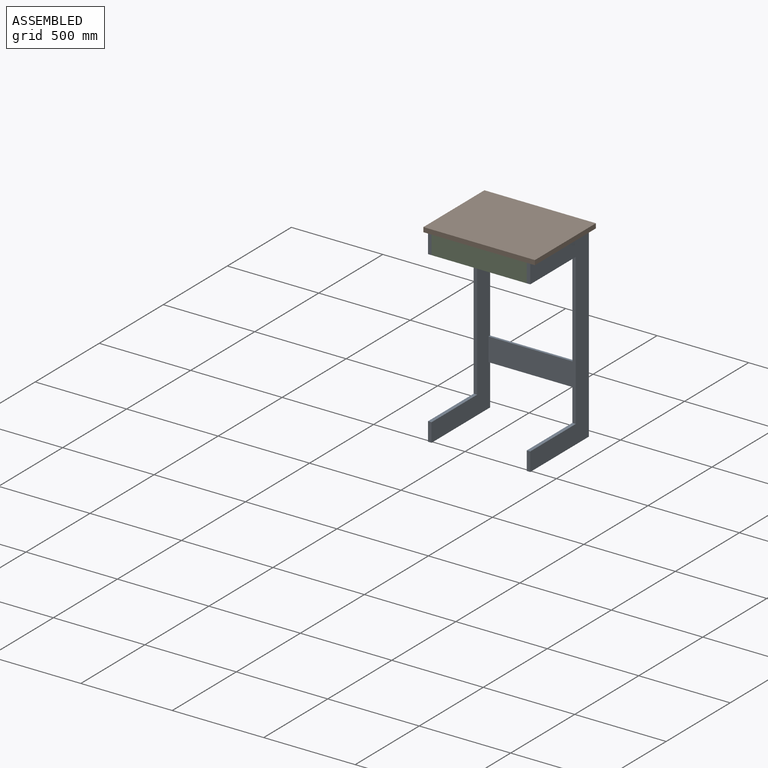
[diagram: assembled view]
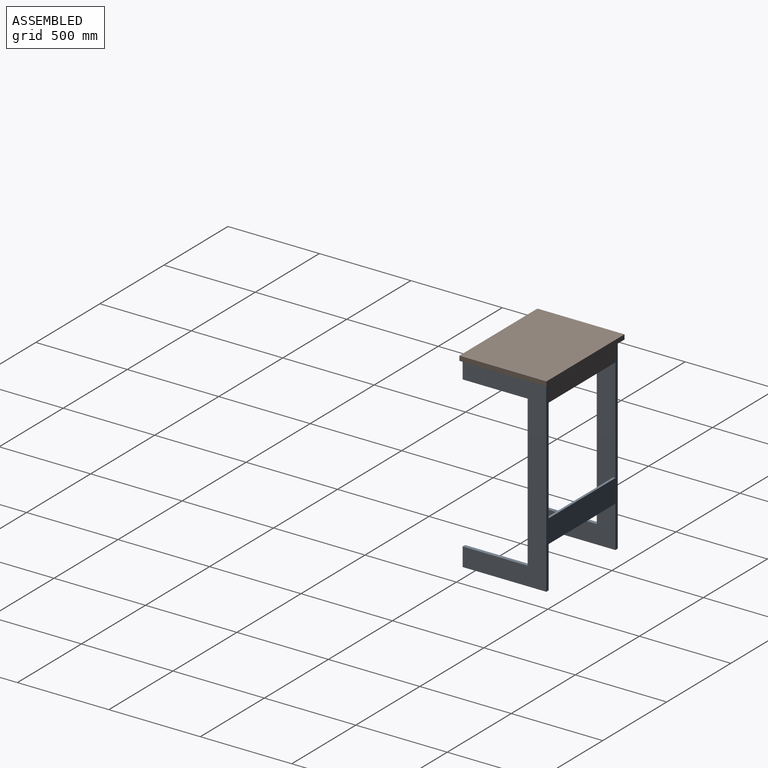
[diagram: assembled view, second angle]
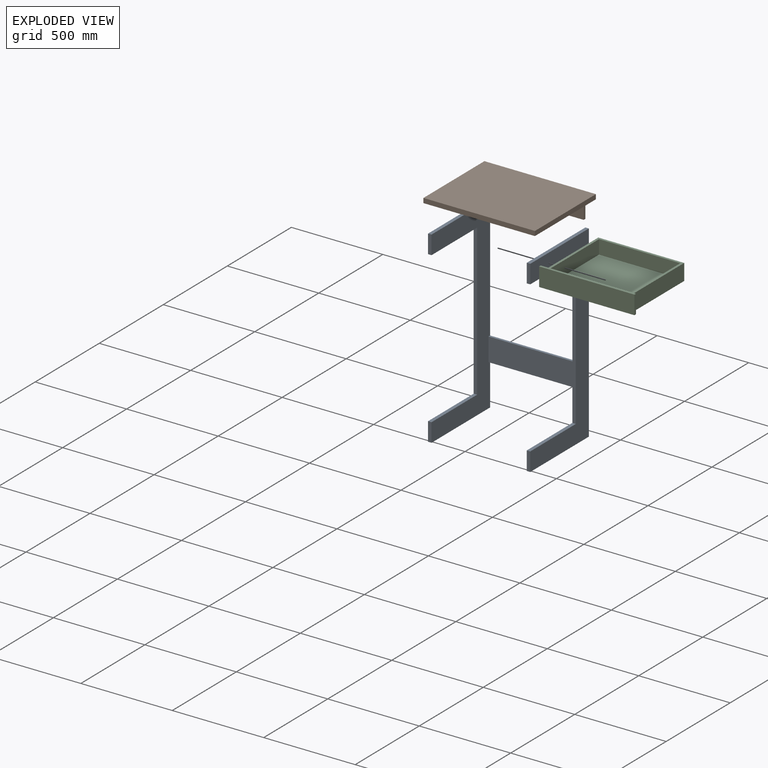
[diagram: exploded view]
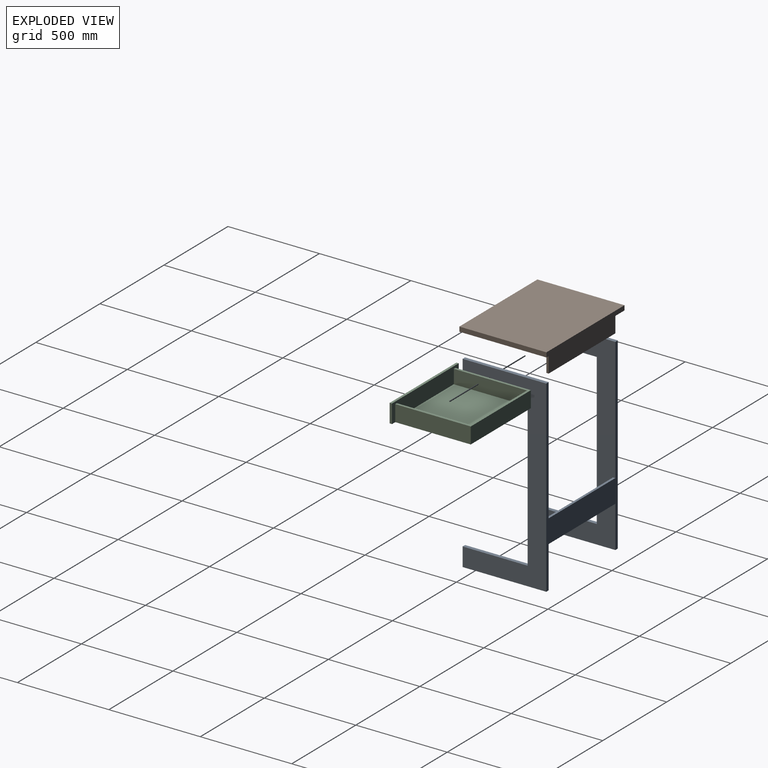
[diagram: exploded view, second angle]
ASSEMBLY  parts=3 mates=2
PART A: 22 faces, bbox 558.8x457.2x1028.7 mm
  f0: plane 101.6x19.05mm, normal (0,-1,0), area 1935.5mm2, adj f1,f2,f5,f11
  f1: plane 1028.7x457.2mm, normal (1,0,0), area 176773.8mm2, adj f0,f3,f4,f5,f6,f10,f11,f12
  f2: plane 1028.7x457.2mm, normal (-1,0,0), area 175160.9mm2, adj f0,f3,f4,f5,f6,f7,f8,f9
  f3: plane 101.6x19.05mm, normal (0,-1,0), area 1935.5mm2, adj f1,f2,f6,f10
  f4: plane 1028.7x558.8mm, normal (0,1,0), area 105322.4mm2, adj f1,f2,f5,f6,f8,f9,f14,f15
  f5: plane 457.2x19.05mm, normal (0,0,1), area 8709.7mm2, adj f0,f1,f2,f4
  f6: plane 457.2x19.05mm, normal (0,0,-1), area 8709.7mm2, adj f1,f2,f3,f4
  f7: plane 520.7x127mm, normal (0,-1,0), area 66128.9mm2, adj f2,f8,f9,f15
  f8: plane 520.7x12.7mm, normal (0,0,1), area 6612.9mm2, adj f2,f4,f7,f15
  f9: plane 520.7x12.7mm, normal (0,0,-1), area 6612.9mm2, adj f2,f4,f7,f15
  f10: plane 355.6x19.05mm, normal (0,0,1), area 6774.2mm2, adj f1,f2,f3,f12
  f11: plane 355.6x19.05mm, normal (0,0,-1), area 6774.2mm2, adj f0,f1,f2,f12
  f12: plane 825.5x19.05mm, normal (0,-1,0), area 15725.8mm2, adj f1,f2,f10,f11
  f13: plane 101.6x19.05mm, normal (0,-1,0), area 1935.5mm2, adj f14,f15,f17,f20
  f14: plane 1028.7x457.2mm, normal (-1,0,0), area 176773.8mm2, adj f4,f13,f16,f17,f18,f19,f20,f21
  f15: plane 1028.7x457.2mm, normal (1,0,0), area 175160.9mm2, adj f4,f7,f8,f9,f13,f16,f17,f18
  f16: plane 101.6x19.05mm, normal (0,-1,0), area 1935.5mm2, adj f14,f15,f18,f19
  f17: plane 457.2x19.05mm, normal (0,0,1), area 8709.7mm2, adj f4,f13,f14,f15
  f18: plane 457.2x19.05mm, normal (0,0,-1), area 8709.7mm2, adj f4,f14,f15,f16
  f19: plane 355.6x19.05mm, normal (0,0,1), area 6774.2mm2, adj f14,f15,f16,f21
  f20: plane 355.6x19.05mm, normal (0,0,-1), area 6774.2mm2, adj f13,f14,f15,f21
  f21: plane 825.5x19.05mm, normal (0,-1,0), area 15725.8mm2, adj f14,f15,f19,f20
PART B: 15 faces, bbox 476.3x609.6x127 mm
  f0: plane 609.6x476.25mm, normal (0,0,1), area 38407.2mm2, adj f1,f2,f3,f4,f6,f7,f8
  f1: plane 609.6x25.4mm, normal (-1,0,0), area 15485.2mm2, adj f0,f2,f4,f5,f6,f7,f9
  f2: plane 476.25x25.4mm, normal (0,-1,0), area 12096.8mm2, adj f0,f1,f3,f5
  f3: plane 609.6x25.4mm, normal (1,0,0), area 15483.8mm2, adj f0,f2,f4,f5
  f4: plane 476.25x25.4mm, normal (0,1,0), area 12096.8mm2, adj f0,f1,f3,f5
  f5: plane 609.6x476.25mm, normal (0,0,-1), area 290322mm2, adj f1,f2,f3,f4
  f6: plane 466.73x0mm, normal (0,1,0), area 1.2mm2, adj f0,f1,f8,f9
  f7: plane 466.73x0mm, normal (0,-1,0), area 1.2mm2, adj f0,f1,f8,f9
  f8: plane 539.75x0mm, normal (1,0,0), area 1.4mm2, adj f0,f6,f7,f9
  f9: plane 539.75x466.73mm, normal (0,0,1), area 245301.9mm2, adj f1,f6,f7,f8,f10,f11,f12,f13
  f10: plane 101.6x12.7mm, normal (0,-1,0), area 1290.3mm2, adj f9,f11,f13,f14
  f11: plane 520.7x101.6mm, normal (1,0,0), area 52901.8mm2, adj f9,f10,f12,f14
  f12: plane 101.6x12.7mm, normal (0,1,0), area 1290.3mm2, adj f9,f11,f13,f14
  f13: plane 520.7x101.6mm, normal (-1,0,0), area 52901.8mm2, adj f9,f10,f12,f14
  f14: plane 520.7x12.7mm, normal (0,0,1), area 6612.9mm2, adj f10,f11,f12,f13
PART C: 14 faces, bbox 520.7x425.5x101.6 mm
  f0: plane 469.9x88.9mm, normal (0,1,0), area 41774.1mm2, adj f1,f5,f6,f7
  f1: plane 412.75x88.9mm, normal (-1,0,0), area 36693.5mm2, adj f0,f6,f7,f9
  f2: plane 400.05x76.2mm, normal (1,0,0), area 30483.8mm2, adj f3,f6,f8,f9
  f3: plane 444.5x76.2mm, normal (0,-1,0), area 33870.9mm2, adj f2,f4,f6,f8
  f4: plane 400.05x76.2mm, normal (-1,0,0), area 30483.8mm2, adj f3,f6,f8,f9
  f5: plane 412.75x88.9mm, normal (1,0,0), area 36693.5mm2, adj f0,f6,f7,f9
  f6: plane 469.9x412.75mm, normal (0,0,1), area 16129mm2, adj f0,f1,f2,f3,f4,f5,f9
  f7: plane 520.7x425.45mm, normal (0,0,-1), area 200564.1mm2, adj f0,f1,f5,f9,f10,f12,f13
  f8: plane 444.5x400.05mm, normal (0,0,1), area 177822.2mm2, adj f2,f3,f4,f9
  f9: plane 520.7x101.6mm, normal (0,1,0), area 44999.9mm2, adj f1,f2,f4,f5,f6,f7,f8,f11
  f10: plane 520.7x101.6mm, normal (0,-1,0), area 52903.1mm2, adj f7,f11,f12,f13
  f11: plane 520.7x12.7mm, normal (0,0,1), area 6612.9mm2, adj f9,f10,f12,f13
  f12: plane 101.6x12.7mm, normal (-1,0,0), area 1290.3mm2, adj f7,f9,f10,f11
  f13: plane 101.6x12.7mm, normal (1,0,0), area 1290.3mm2, adj f7,f9,f10,f11
PLACE A t=(-391.39,412.62,-172.24)mm
PLACE B rot(axis=(0.71,0.71,0),180deg) t=(-391.39,193.55,881.86)mm
PLACE C t=(-391.39,168.15,754.86)mm
MATE fastened A.f2 <-> C.f13  axis (-1,0,0) through (-131.04,-44.58,805.66)mm
MATE fastened B.f9 <-> A.f17  axis (0,0,-1) through (-661.26,-44.58,856.46)mm
